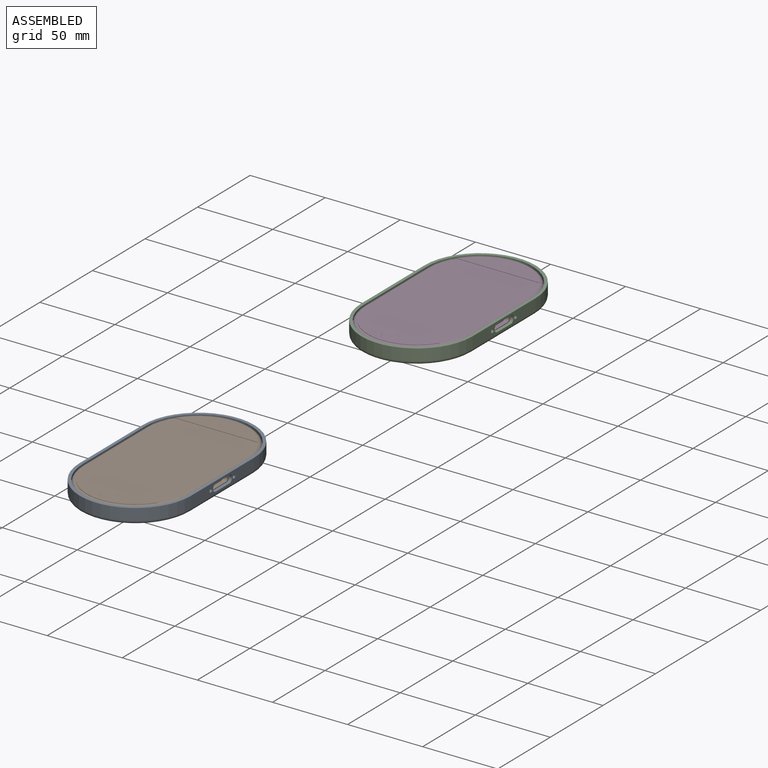
[diagram: assembled view]
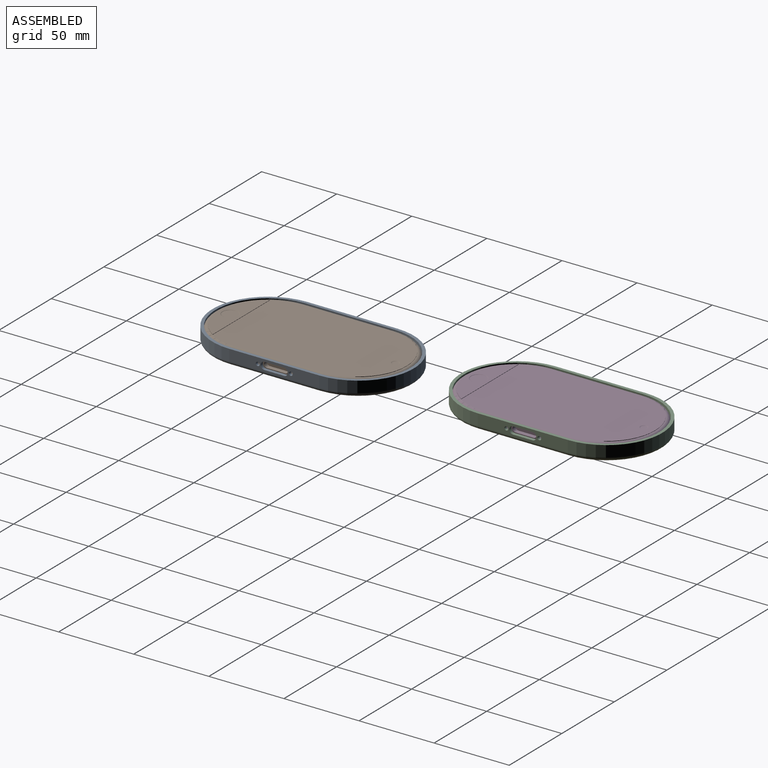
[diagram: assembled view, second angle]
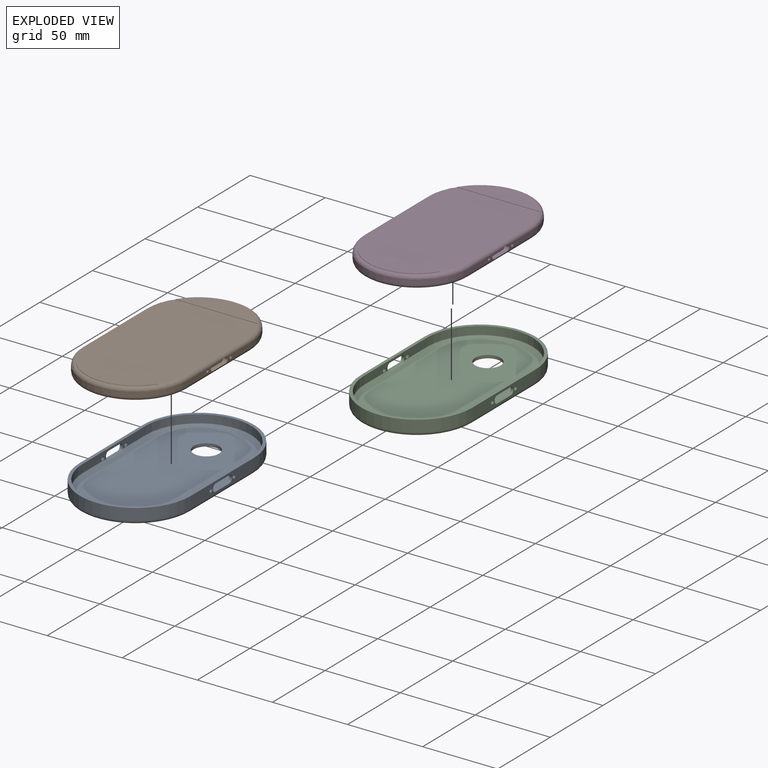
[diagram: exploded view]
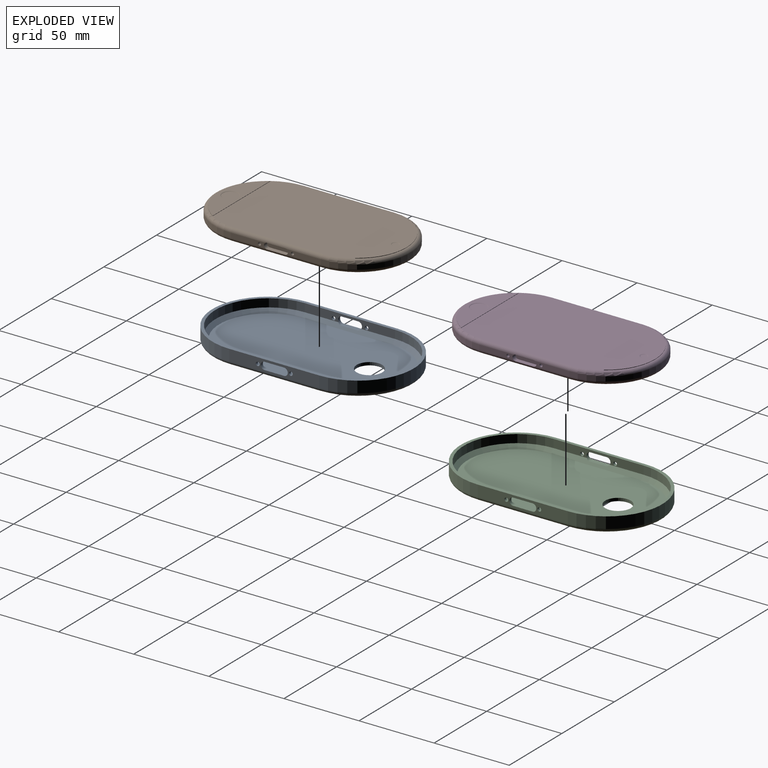
[diagram: exploded view, second angle]
ASSEMBLY  parts=4 mates=2
PART A: 32 faces, bbox 80.1x140.1x10 mm
  f0: plane 60x7.5mm, normal (-1,0,0), area 365.5mm2, adj f4,f5,f6,f11,f12,f13,f14,f22
  f1: plane 60x5.5mm, normal (1,0,0), area 259.3mm2, adj f4,f8,f9,f11,f12,f14,f22,f23
  f2: plane 60x7.5mm, normal (1,0,0), area 355.5mm2, adj f4,f5,f6,f16,f17,f18,f19,f20
  f3: plane 60x5.5mm, normal (-1,0,0), area 251.3mm2, adj f4,f8,f9,f16,f17,f19,f20,f21
  f4: plane 134x74mm, normal (0,0,1), area 692.4mm2, adj f0,f1,f2,f3,f5,f6,f8,f9
  f5: cylinder r=37mm len=74mm, axis (0,0,-1), area 871.8mm2, adj f0,f2,f4,f26
  f6: cylinder r=37mm len=74mm, axis (0,0,-1), area 871.8mm2, adj f0,f2,f4,f25
  f7: plane 129x69mm, normal (0,0,-1), area 7652.3mm2, adj f15,f24,f25,f26,f27
  f8: cylinder r=35mm len=70mm, axis (0,0,-1), area 604.8mm2, adj f1,f3,f4,f30
  f9: cylinder r=35mm len=70mm, axis (0,0,-1), area 604.8mm2, adj f1,f3,f4,f29
  f10: plane 125x65mm, normal (0,0,1), area 6991.3mm2, adj f15,f28,f29,f30,f31
  f11: plane 11x2mm, normal (0,0,-1), area 22mm2, adj f0,f1,f12,f14
  f12: cylinder r=2.5mm len=5mm, axis (-1,0,0), area 17.2mm2, adj f0,f1,f11,f13,f31
  f13: plane 11x3mm, normal (0,0,1), area 33mm2, adj f0,f12,f14,f31
  f14: cylinder r=2.5mm len=5mm, axis (-1,0,0), area 17.2mm2, adj f0,f1,f11,f13,f31
  f15: cylinder r=8.5mm len=17mm, axis (0,0,1), area 106.8mm2, adj f7,f10
  f16: plane 13x2mm, normal (0,0,-1), area 26mm2, adj f2,f3,f17,f19
  f17: cylinder r=2.5mm len=5mm, axis (1,0,0), area 17.2mm2, adj f2,f3,f16,f18,f28
  f18: plane 13x3mm, normal (0,0,1), area 39mm2, adj f2,f17,f19,f28
  f19: cylinder r=2.5mm len=5mm, axis (1,0,0), area 17.2mm2, adj f2,f3,f16,f18,f28
  f20: cylinder r=1.25mm len=2.5mm, axis (1,0,0), area 15.7mm2, adj f2,f3
  f21: cylinder r=1.25mm len=2.5mm, axis (1,0,0), area 15.7mm2, adj f2,f3
  f22: cylinder r=1.25mm len=2.5mm, axis (-1,0,0), area 15.7mm2, adj f0,f1
  f23: cylinder r=1.25mm len=2.5mm, axis (-1,0,0), area 15.7mm2, adj f0,f1
  f24: cylinder r=2.5mm len=60mm, axis (0,-1,0), area 235.6mm2, adj f0,f7,f25,f26
  f25: torus R=34.5mm, axis (0,0,1), area 445.3mm2, adj f6,f7,f24,f27
  f26: torus R=34.5mm, axis (0,0,1), area 445.3mm2, adj f5,f7,f24,f27
  f27: cylinder r=2.5mm len=60mm, axis (0,1,0), area 235.6mm2, adj f2,f7,f25,f26
  f28: plane 60x2.5mm, normal (-0.71,0,0.71), area 189.8mm2, adj f3,f10,f17,f18,f19,f29,f30
  f29: cone r=35mm half-angle=45deg, axis (0,0,1), area 374.9mm2, adj f9,f10,f28,f31
  f30: cone r=32.5mm half-angle=45deg, axis (0,0,1), area 374.9mm2, adj f8,f10,f28,f31
  f31: plane 60x2.5mm, normal (0.71,0,0.71), area 192.6mm2, adj f1,f10,f12,f13,f14,f29,f30
PART B: 48 faces, bbox 75.8x135.8x9.3 mm
  f0: plane 24.68x3mm, normal (-1,0,0), area 69.5mm2, adj f4,f16,f24,f26,f30
  f1: plane 22.68x3mm, normal (1,0,0), area 63.5mm2, adj f5,f11,f20,f29,f33
  f2: plane 24.68x3mm, normal (-1,0,0), area 69.5mm2, adj f5,f14,f22,f26,f30
  f3: plane 22.68x3mm, normal (1,0,0), area 63.5mm2, adj f4,f9,f18,f29,f33
  f4: cylinder r=35mm len=70mm, axis (0,0,-1), area 329.9mm2, adj f0,f3,f28,f32
  f5: cylinder r=35mm len=70mm, axis (0,0,-1), area 329.9mm2, adj f1,f2,f27,f31
  f6: plane 95x65mm, normal (0,0,1), area 6059.7mm2, adj f30,f31,f32,f33,f36,f39
  f7: plane 125x65mm, normal (0,0,-1), area 7041.6mm2, adj f26,f27,f28,f29,f35
  f8: plane 12x2.95mm, normal (0,0,1), area 35.4mm2, adj f9,f11,f12,f29
  f9: cylinder r=2mm len=4mm, axis (1,0,0), area 18.8mm2, adj f3,f8,f10,f12,f29,f33
  f10: plane 12x2.95mm, normal (0,0,-1), area 35.4mm2, adj f9,f11,f12,f33
  f11: cylinder r=2mm len=4mm, axis (1,0,0), area 18.8mm2, adj f1,f8,f10,f12,f29,f33
  f12: plane 16x4mm, normal (1,0,0), area 60.6mm2, adj f8,f9,f10,f11
  f13: plane 8x2.95mm, normal (0,0,1), area 23.6mm2, adj f14,f16,f17,f26
  f14: cylinder r=2mm len=4mm, axis (-1,0,0), area 18.8mm2, adj f2,f13,f15,f17,f26,f30
  f15: plane 8x2.95mm, normal (0,0,-1), area 23.6mm2, adj f14,f16,f17,f30
  f16: cylinder r=2mm len=4mm, axis (-1,0,0), area 18.8mm2, adj f0,f13,f15,f17,f26,f30
  f17: plane 12x4mm, normal (-1,0,0), area 44.6mm2, adj f13,f14,f15,f16
  f18: cylinder r=1mm len=2mm, axis (1,0,0), area 12.6mm2, adj f3,f19
  f19: plane 2x2mm, normal (1,0,0), area 3.1mm2, adj f18
  f20: cylinder r=1mm len=2mm, axis (1,0,0), area 12.6mm2, adj f1,f21
  f21: plane 2x2mm, normal (1,0,0), area 3.1mm2, adj f20
  f22: cylinder r=1mm len=2mm, axis (-1,0,0), area 12.6mm2, adj f2,f23
  f23: plane 2x2mm, normal (-1,0,0), area 3.1mm2, adj f22
  f24: cylinder r=1mm len=2mm, axis (-1,0,0), area 12.6mm2, adj f0,f25
  f25: plane 2x2mm, normal (-1,0,0), area 3.1mm2, adj f24
  f26: cylinder r=2.5mm len=60mm, axis (0,-1,0), area 230.7mm2, adj f0,f2,f7,f13,f14,f16,f27,f28
  f27: torus R=32.5mm, axis (0,0,1), area 420.6mm2, adj f5,f7,f26,f29
  f28: torus R=32.5mm, axis (0,0,1), area 420.6mm2, adj f4,f7,f26,f29
  f29: cylinder r=2.5mm len=60mm, axis (0,1,0), area 228.7mm2, adj f1,f3,f7,f8,f9,f11,f27,f28
  f30: cylinder r=2.5mm len=60mm, axis (0,1,0), area 230.7mm2, adj f0,f2,f6,f14,f15,f16,f31,f32
  f31: torus R=32.5mm, axis (0,0,1), area 420.6mm2, adj f5,f6,f30,f33,f37
  f32: torus R=32.5mm, axis (0,0,1), area 420.6mm2, adj f4,f6,f30,f33,f40
  f33: cylinder r=2.5mm len=60mm, axis (0,-1,0), area 228.7mm2, adj f1,f3,f6,f9,f10,f11,f31,f32
  f34: plane 7.79x7.79mm, normal (0,0,-1), area 6.9mm2, adj f35,f45
  f35: torus R=3.89mm, axis (0,0,1), area 136.7mm2, adj f7,f34
  f36: plane 54.77x0.25mm, normal (0,1,0), area 13.7mm2, adj f6,f37,f38
  f37: cylinder r=32.5mm len=54.77mm, axis (0,0,-1), area 16.3mm2, adj f31,f36,f38
  f38: plane 54.77x15mm, normal (0,0,1), area 487.7mm2, adj f36,f37,f47
  f39: plane 54.77x0.25mm, normal (0,-1,0), area 13.7mm2, adj f6,f40,f41
  f40: cylinder r=32.5mm len=54.77mm, axis (0,0,-1), area 16.3mm2, adj f32,f39,f41
  f41: plane 54.77x15mm, normal (0,0,1), area 558.1mm2, adj f39,f40,f43
  f42: plane 4x4mm, normal (0,0,1), area 12.6mm2, adj f43
  f43: torus R=2.6mm, axis (0,0,1), area 9.3mm2, adj f41,f42
  f44: plane 6x6mm, normal (0,0,-1), area 28.3mm2, adj f45
  f45: torus R=3.6mm, axis (0,0,-1), area 13.3mm2, adj f34,f44
  f46: plane 10x10mm, normal (0,0,1), area 78.5mm2, adj f47
  f47: torus R=5.4mm, axis (0,0,1), area 15.1mm2, adj f38,f46
PART C: same geometry as A
PART D: same geometry as B
PLACE A t=(5.13,-71.99,18.37)mm
PLACE B t=(5.13,-72.27,20.37)mm
PLACE C t=(53.17,127.1,51.17)mm
PLACE D t=(53.17,126.82,53.17)mm
MATE fastened B.f7 <-> A.f10  axis (0,0,-1) through (5.13,-73.21,20.37)mm
MATE fastened C.f10 <-> D.f7  axis (0,0,1) through (53.17,125.88,53.17)mm
